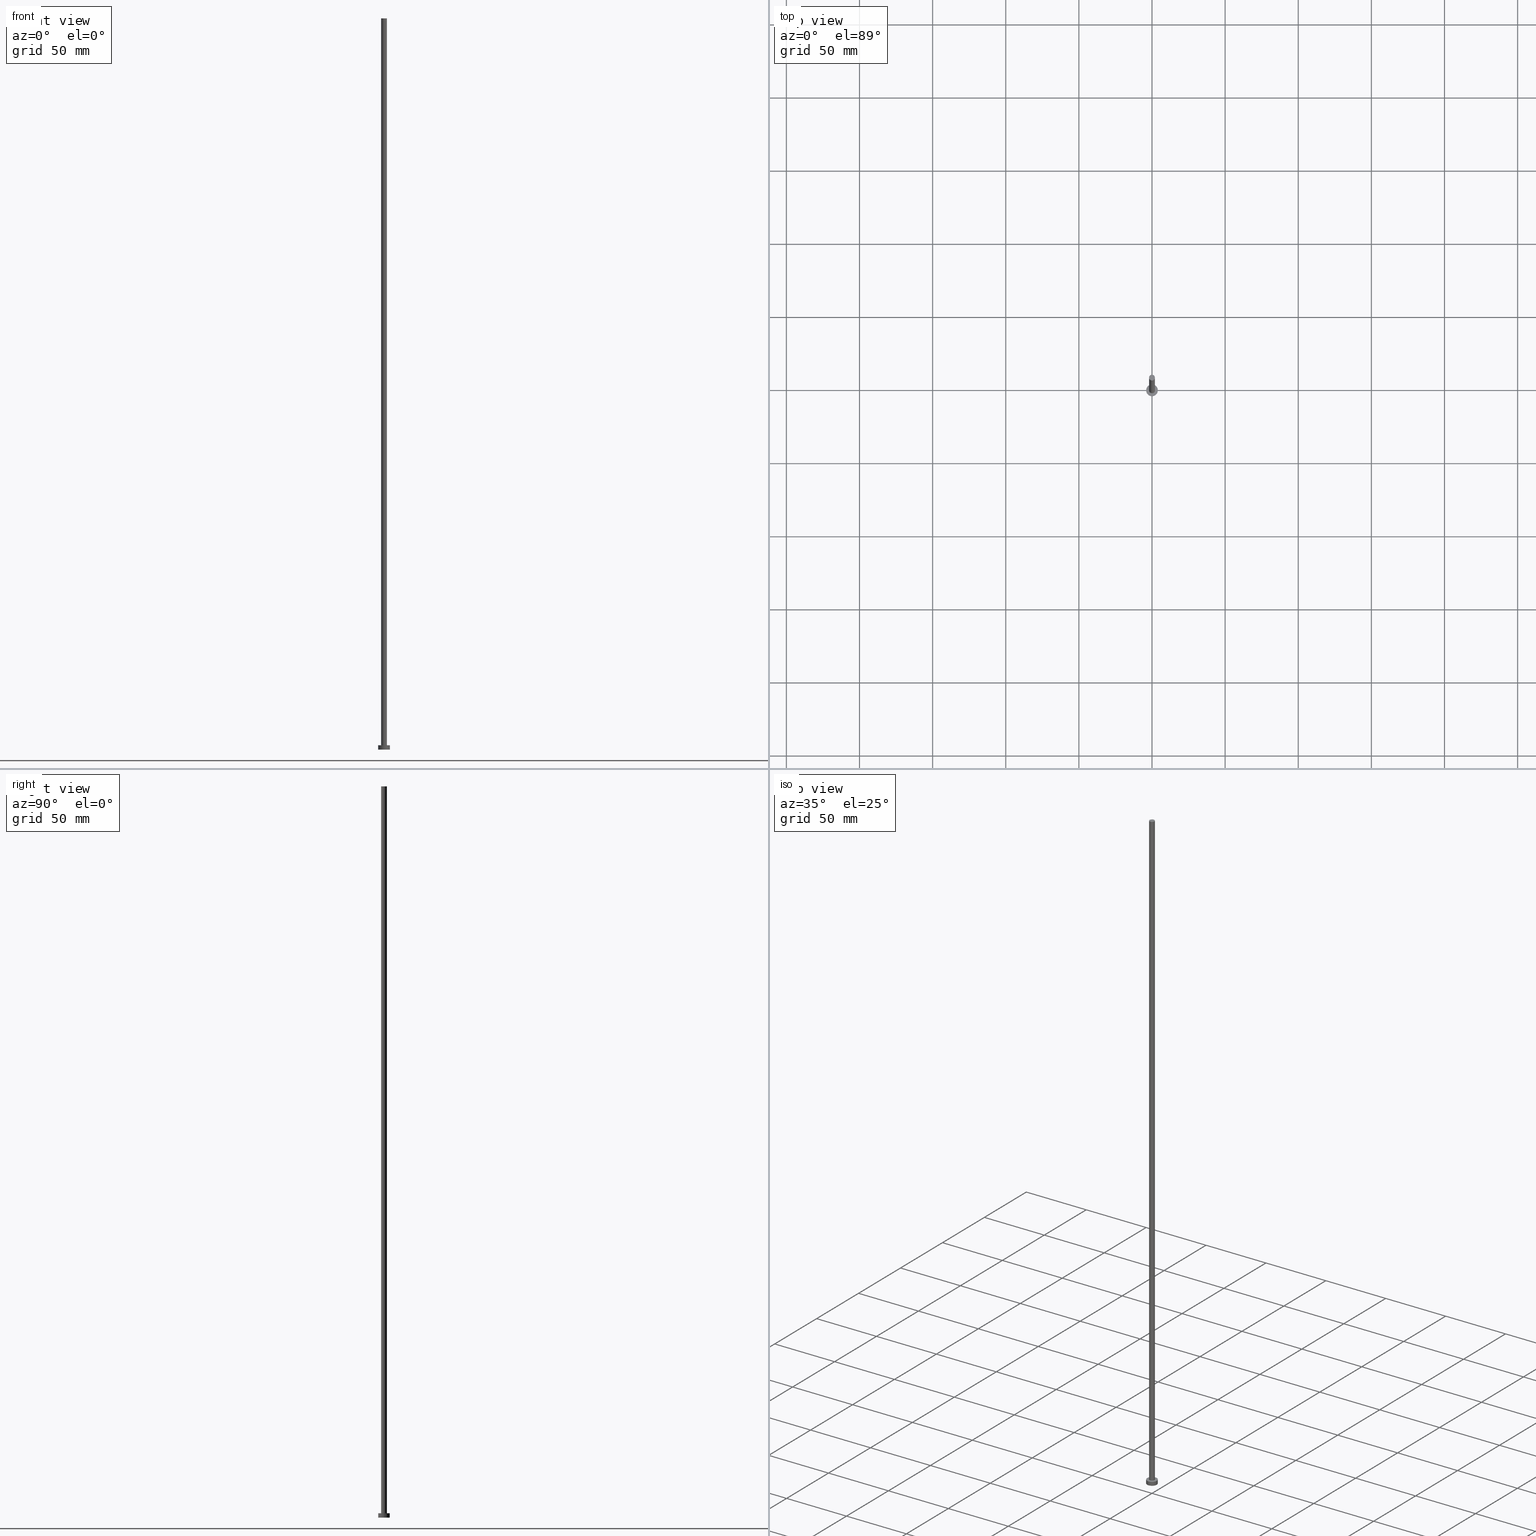
[diagram: canonical four-view strip — front | top / right | iso, engineering-drawing reading convention]
A machine part, canonical four-view strip (front | top / right | iso — engineering-drawing reading convention). The complete STEP part file that produces these views, byte-faithful:
ISO-10303-21;
HEADER;
FILE_DESCRIPTION (( 'STEP AP203' ),
    '1' );
FILE_NAME ('85b9.STEP',
    '2023-02-12T12:01:39',
    ( '' ),
    ( '' ),
    'SwSTEP 2.0',
    'SolidWorks 2019',
    '' );
FILE_SCHEMA (( 'CONFIG_CONTROL_DESIGN' ));
ENDSEC;

DATA;
#1 = CARTESIAN_POINT ( 'NONE',  ( 0.000000000000000000, 0.000000000000000000, 500.0000000000000000 ) ) ;
#2 = AXIS2_PLACEMENT_3D ( 'NONE', #242, #186, #244 ) ;
#3 = DIRECTION ( 'NONE',  ( 0.000000000000000000, 0.000000000000000000, 1.000000000000000000 ) ) ;
#4 = CARTESIAN_POINT ( 'NONE',  ( 0.000000000000000000, 0.000000000000000000, 500.0000000000000000 ) ) ;
#5 = EDGE_LOOP ( 'NONE', ( #83, #234 ) ) ;
#6 = CYLINDRICAL_SURFACE ( 'NONE', #41, 4.000000000000000000 ) ;
#7 = CARTESIAN_POINT ( 'NONE',  ( 0.000000000000000000, 0.000000000000000000, 3.000000000000000000 ) ) ;
#8 = EDGE_CURVE ( 'NONE', #121, #135, #218, .T. ) ;
#9 = APPROVAL_DATE_TIME ( #28, #220 ) ;
#10 = PERSON_AND_ORGANIZATION_ROLE ( 'design_supplier' ) ;
#11 = ADVANCED_FACE ( 'NONE', ( #44 ), #144, .F. ) ;
#12 = APPROVAL_PERSON_ORGANIZATION ( #224, #225, #73 ) ;
#13 = COORDINATED_UNIVERSAL_TIME_OFFSET ( 1, 0, .AHEAD. ) ;
#14 = ORIENTED_EDGE ( 'NONE', *, *, #94, .F. ) ;
#15 = COORDINATED_UNIVERSAL_TIME_OFFSET ( 1, 0, .AHEAD. ) ;
#16 = EDGE_LOOP ( 'NONE', ( #110, #75, #253, #201 ) ) ;
#17 = COORDINATED_UNIVERSAL_TIME_OFFSET ( 1, 0, .AHEAD. ) ;
#18 = VECTOR ( 'NONE', #142, 1000.000000000000000 ) ;
#19 = CC_DESIGN_PERSON_AND_ORGANIZATION_ASSIGNMENT ( #247, #96, ( #118 ) ) ;
#20 = CARTESIAN_POINT ( 'NONE',  ( 0.000000000000000000, 0.000000000000000000, 3.000000000000000000 ) ) ;
#21 = ORIENTED_EDGE ( 'NONE', *, *, #136, .F. ) ;
#22 = CYLINDRICAL_SURFACE ( 'NONE', #115, 2.000000000000000000 ) ;
#23 = AXIS2_PLACEMENT_3D ( 'NONE', #47, #184, #85 ) ;
#24 = CARTESIAN_POINT ( 'NONE',  ( 4.000000000000000000, 4.898587196589412829E-16, 0.000000000000000000 ) ) ;
#25 = APPLICATION_PROTOCOL_DEFINITION ( 'international standard', 'config_control_design', 1994, #251 ) ;
#26 = LOCAL_TIME ( 13, 1, 39.00000000000000000, #13 ) ;
#27 = PRODUCT_RELATED_PRODUCT_CATEGORY ( 'detail', '', ( #228 ) ) ;
#28 = DATE_AND_TIME ( #205, #86 ) ;
#29 = CARTESIAN_POINT ( 'NONE',  ( 0.000000000000000000, 0.000000000000000000, 500.0000000000000000 ) ) ;
#30 = AXIS2_PLACEMENT_3D ( 'NONE', #206, #88, #241 ) ;
#31 = FACE_OUTER_BOUND ( 'NONE', #175, .T. ) ;
#32 = AXIS2_PLACEMENT_3D ( 'NONE', #202, #215, #122 ) ;
#33 = APPROVAL_STATUS ( 'not_yet_approved' ) ;
#34 = CALENDAR_DATE ( 2023, 12, 2 ) ;
#35 = PERSON_AND_ORGANIZATION ( #101, #111 ) ;
#36 = VERTEX_POINT ( 'NONE', #24 ) ;
#37 = APPROVAL_ROLE ( '' ) ;
#38 = AXIS2_PLACEMENT_3D ( 'NONE', #7, #48, #69 ) ;
#39 = CC_DESIGN_SECURITY_CLASSIFICATION ( #118, ( #43 ) ) ;
#40 = DIRECTION ( 'NONE',  ( 0.000000000000000000, 0.000000000000000000, 1.000000000000000000 ) ) ;
#41 = AXIS2_PLACEMENT_3D ( 'NONE', #20, #126, #160 ) ;
#42 = CARTESIAN_POINT ( 'NONE',  ( 0.000000000000000000, 0.000000000000000000, 500.0000000000000000 ) ) ;
#43 = PRODUCT_DEFINITION_FORMATION_WITH_SPECIFIED_SOURCE ( 'LIBOVOLN�', '', #228, .NOT_KNOWN. ) ;
#44 = FACE_OUTER_BOUND ( 'NONE', #124, .T. ) ;
#45 = ADVANCED_FACE ( 'NONE', ( #141 ), #6, .T. ) ;
#46 = CARTESIAN_POINT ( 'NONE',  ( 0.000000000000000000, 0.000000000000000000, 3.000000000000000000 ) ) ;
#47 = CARTESIAN_POINT ( 'NONE',  ( 0.000000000000000000, 0.000000000000000000, 0.000000000000000000 ) ) ;
#48 = DIRECTION ( 'NONE',  ( -0.000000000000000000, -0.000000000000000000, -1.000000000000000000 ) ) ;
#49 = DIRECTION ( 'NONE',  ( 1.000000000000000000, 0.000000000000000000, 0.000000000000000000 ) ) ;
#50 =( NAMED_UNIT ( * ) SI_UNIT ( $, .STERADIAN. ) SOLID_ANGLE_UNIT ( ) );
#51 =( LENGTH_UNIT ( ) NAMED_UNIT ( * ) SI_UNIT ( .MILLI., .METRE. ) );
#52 = ADVANCED_FACE ( 'NONE', ( #177 ), #22, .T. ) ;
#53 = LINE ( 'NONE', #151, #233 ) ;
#54 = AXIS2_PLACEMENT_3D ( 'NONE', #4, #40, #109 ) ;
#55 = EDGE_CURVE ( 'NONE', #174, #36, #82, .T. ) ;
#56 = APPROVAL_DATE_TIME ( #211, #103 ) ;
#57 = EDGE_LOOP ( 'NONE', ( #117, #139, #154, #232 ) ) ;
#58 = DATE_AND_TIME ( #172, #76 ) ;
#59 = ORIENTED_EDGE ( 'NONE', *, *, #199, .F. ) ;
#60 = PERSON_AND_ORGANIZATION ( #101, #111 ) ;
#61 = ADVANCED_FACE ( 'NONE', ( #213, #143 ), #106, .T. ) ;
#62 = ORIENTED_EDGE ( 'NONE', *, *, #208, .F. ) ;
#63 = LINE ( 'NONE', #217, #18 ) ;
#64 = EDGE_LOOP ( 'NONE', ( #98, #127 ) ) ;
#65 = ORIENTED_EDGE ( 'NONE', *, *, #129, .F. ) ;
#66 = DIRECTION ( 'NONE',  ( 0.000000000000000000, 0.000000000000000000, 1.000000000000000000 ) ) ;
#67 = EDGE_CURVE ( 'NONE', #121, #174, #113, .T. ) ;
#68 = MECHANICAL_CONTEXT ( 'NONE', #251, 'mechanical' ) ;
#69 = DIRECTION ( 'NONE',  ( -1.000000000000000000, 0.000000000000000000, 0.000000000000000000 ) ) ;
#70 = FACE_OUTER_BOUND ( 'NONE', #57, .T. ) ;
#71 = VERTEX_POINT ( 'NONE', #200 ) ;
#72 = CIRCLE ( 'NONE', #249, 4.000000000000000000 ) ;
#73 = APPROVAL_ROLE ( '' ) ;
#74 = EDGE_CURVE ( 'NONE', #80, #196, #63, .T. ) ;
#75 = ORIENTED_EDGE ( 'NONE', *, *, #67, .F. ) ;
#76 = LOCAL_TIME ( 13, 1, 39.00000000000000000, #15 ) ;
#77 = CALENDAR_DATE ( 2023, 12, 2 ) ;
#78 = ORIENTED_EDGE ( 'NONE', *, *, #74, .F. ) ;
#79 = DATE_AND_TIME ( #77, #140 ) ;
#80 = VERTEX_POINT ( 'NONE', #108 ) ;
#81 = CC_DESIGN_PERSON_AND_ORGANIZATION_ASSIGNMENT ( #92, #168, ( #153 ) ) ;
#82 = LINE ( 'NONE', #198, #137 ) ;
#83 = ORIENTED_EDGE ( 'NONE', *, *, #208, .T. ) ;
#84 = DIRECTION ( 'NONE',  ( 1.000000000000000000, 0.000000000000000000, -0.000000000000000000 ) ) ;
#85 = DIRECTION ( 'NONE',  ( 1.000000000000000000, 0.000000000000000000, -0.000000000000000000 ) ) ;
#86 = LOCAL_TIME ( 13, 1, 39.00000000000000000, #187 ) ;
#87 = CARTESIAN_POINT ( 'NONE',  ( 0.000000000000000000, 0.000000000000000000, 3.000000000000000000 ) ) ;
#88 = DIRECTION ( 'NONE',  ( 0.000000000000000000, 0.000000000000000000, 1.000000000000000000 ) ) ;
#89 = DESIGN_CONTEXT ( 'detailed design', #105, 'design' ) ;
#90 = CARTESIAN_POINT ( 'NONE',  ( 0.000000000000000000, 0.000000000000000000, 3.000000000000000000 ) ) ;
#91 = AXIS2_PLACEMENT_3D ( 'NONE', #189, #240, #209 ) ;
#92 = PERSON_AND_ORGANIZATION ( #101, #111 ) ;
#93 = DIRECTION ( 'NONE',  ( -0.000000000000000000, -0.000000000000000000, -1.000000000000000000 ) ) ;
#94 = EDGE_CURVE ( 'NONE', #36, #135, #176, .T. ) ;
#95 = CARTESIAN_POINT ( 'NONE',  ( 2.000000000000000000, 2.449293598294705921E-16, 3.000000000000000000 ) ) ;
#96 = PERSON_AND_ORGANIZATION_ROLE ( 'classification_officer' ) ;
#97 = PERSON_AND_ORGANIZATION ( #101, #111 ) ;
#98 = ORIENTED_EDGE ( 'NONE', *, *, #67, .T. ) ;
#99 = UNCERTAINTY_MEASURE_WITH_UNIT (LENGTH_MEASURE( 1.000000000000000082E-05 ), #51, 'distance_accuracy_value', 'NONE');
#100 = CIRCLE ( 'NONE', #91, 2.000000000000000000 ) ;
#101 = PERSON ( 'NEUR�EN�', 'NEUR�EN�', 'NEUR�EN�', ('NEUR�EN�'), ('NEUR�EN�'), ('NEUR�EN�') ) ;
#102 = VERTEX_POINT ( 'NONE', #159 ) ;
#103 = APPROVAL ( #33, 'NEUR�EN�' ) ;
#104 = CARTESIAN_POINT ( 'NONE',  ( -4.000000000000000000, 0.000000000000000000, 3.000000000000000000 ) ) ;
#105 = APPLICATION_CONTEXT ( 'configuration controlled 3d designs of mechanical parts and assemblies' ) ;
#106 = PLANE ( 'NONE',  #146 ) ;
#107 = EDGE_CURVE ( 'NONE', #80, #102, #165, .T. ) ;
#108 = CARTESIAN_POINT ( 'NONE',  ( 2.000000000000000000, 2.449293598294705921E-16, 500.0000000000000000 ) ) ;
#109 = DIRECTION ( 'NONE',  ( 1.000000000000000000, 0.000000000000000000, 0.000000000000000000 ) ) ;
#110 = ORIENTED_EDGE ( 'NONE', *, *, #55, .F. ) ;
#111 = ORGANIZATION ( 'NEUR�EN�', 'NEUR�EN�', '' ) ;
#112 = ADVANCED_FACE ( 'NONE', ( #179 ), #197, .T. ) ;
#113 = CIRCLE ( 'NONE', #32, 4.000000000000000000 ) ;
#114 = CARTESIAN_POINT ( 'NONE',  ( 0.000000000000000000, 0.000000000000000000, 500.0000000000000000 ) ) ;
#115 = AXIS2_PLACEMENT_3D ( 'NONE', #1, #183, #237 ) ;
#116 = PERSON_AND_ORGANIZATION_ROLE ( 'creator' ) ;
#117 = ORIENTED_EDGE ( 'NONE', *, *, #123, .F. ) ;
#118 = SECURITY_CLASSIFICATION ( '', '', #173 ) ;
#119 = ORIENTED_EDGE ( 'NONE', *, *, #254, .T. ) ;
#120 = CC_DESIGN_DATE_AND_TIME_ASSIGNMENT ( #138, #134, ( #118 ) ) ;
#121 = VERTEX_POINT ( 'NONE', #162 ) ;
#122 = DIRECTION ( 'NONE',  ( 1.000000000000000000, 0.000000000000000000, 0.000000000000000000 ) ) ;
#123 = EDGE_CURVE ( 'NONE', #174, #121, #72, .T. ) ;
#124 = EDGE_LOOP ( 'NONE', ( #21, #14 ) ) ;
#125 = AXIS2_PLACEMENT_3D ( 'NONE', #90, #149, #204 ) ;
#126 = DIRECTION ( 'NONE',  ( -0.000000000000000000, -0.000000000000000000, -1.000000000000000000 ) ) ;
#127 = ORIENTED_EDGE ( 'NONE', *, *, #123, .T. ) ;
#128 = EDGE_LOOP ( 'NONE', ( #65, #194 ) ) ;
#129 = EDGE_CURVE ( 'NONE', #71, #196, #100, .T. ) ;
#130 = APPROVAL_STATUS ( 'not_yet_approved' ) ;
#131 = AXIS2_PLACEMENT_3D ( 'NONE', #238, #66, #214 ) ;
#132 = DIRECTION ( 'NONE',  ( 0.000000000000000000, 0.000000000000000000, 1.000000000000000000 ) ) ;
#133 = CLOSED_SHELL ( 'NONE', ( #246, #239, #45, #61, #11, #52, #112 ) ) ;
#134 = DATE_TIME_ROLE ( 'classification_date' ) ;
#135 = VERTEX_POINT ( 'NONE', #170 ) ;
#136 = EDGE_CURVE ( 'NONE', #135, #36, #203, .T. ) ;
#137 = VECTOR ( 'NONE', #235, 1000.000000000000000 ) ;
#138 = DATE_AND_TIME ( #34, #180 ) ;
#139 = ORIENTED_EDGE ( 'NONE', *, *, #55, .T. ) ;
#140 = LOCAL_TIME ( 13, 1, 39.00000000000000000, #193 ) ;
#141 = FACE_OUTER_BOUND ( 'NONE', #16, .T. ) ;
#142 = DIRECTION ( 'NONE',  ( -0.000000000000000000, -0.000000000000000000, -1.000000000000000000 ) ) ;
#143 = FACE_OUTER_BOUND ( 'NONE', #64, .T. ) ;
#144 = PLANE ( 'NONE',  #23 ) ;
#145 = DIRECTION ( 'NONE',  ( -0.000000000000000000, -0.000000000000000000, -1.000000000000000000 ) ) ;
#146 = AXIS2_PLACEMENT_3D ( 'NONE', #87, #164, #161 ) ;
#147 = DIRECTION ( 'NONE',  ( -0.000000000000000000, -0.000000000000000000, -1.000000000000000000 ) ) ;
#148 = PERSON_AND_ORGANIZATION ( #101, #111 ) ;
#149 = DIRECTION ( 'NONE',  ( 0.000000000000000000, 0.000000000000000000, 1.000000000000000000 ) ) ;
#150 = PERSON_AND_ORGANIZATION_ROLE ( 'design_owner' ) ;
#151 = CARTESIAN_POINT ( 'NONE',  ( -2.000000000000000000, 0.000000000000000000, 500.0000000000000000 ) ) ;
#152 = CC_DESIGN_APPROVAL ( #103, ( #43 ) ) ;
#153 = PRODUCT_DEFINITION ( 'NEZN�M�', '', #43, #89 ) ;
#154 = ORIENTED_EDGE ( 'NONE', *, *, #94, .T. ) ;
#155 = APPROVAL_DATE_TIME ( #58, #225 ) ;
#156 = ORIENTED_EDGE ( 'NONE', *, *, #107, .F. ) ;
#157 = APPROVAL_PERSON_ORGANIZATION ( #35, #103, #37 ) ;
#158 = CALENDAR_DATE ( 2023, 12, 2 ) ;
#159 = CARTESIAN_POINT ( 'NONE',  ( -2.000000000000000000, 0.000000000000000000, 500.0000000000000000 ) ) ;
#160 = DIRECTION ( 'NONE',  ( -1.000000000000000000, 0.000000000000000000, 0.000000000000000000 ) ) ;
#161 = DIRECTION ( 'NONE',  ( 1.000000000000000000, 0.000000000000000000, -0.000000000000000000 ) ) ;
#162 = CARTESIAN_POINT ( 'NONE',  ( -4.000000000000000000, 0.000000000000000000, 3.000000000000000000 ) ) ;
#163 = CC_DESIGN_PERSON_AND_ORGANIZATION_ASSIGNMENT ( #60, #10, ( #43 ) ) ;
#164 = DIRECTION ( 'NONE',  ( 0.000000000000000000, 0.000000000000000000, 1.000000000000000000 ) ) ;
#165 = CIRCLE ( 'NONE', #54, 2.000000000000000000 ) ;
#166 = CARTESIAN_POINT ( 'NONE',  ( 4.000000000000000000, 4.898587196589412829E-16, 3.000000000000000000 ) ) ;
#167 = CC_DESIGN_APPROVAL ( #225, ( #118 ) ) ;
#168 = PERSON_AND_ORGANIZATION_ROLE ( 'creator' ) ;
#169 = DIRECTION ( 'NONE',  ( -1.000000000000000000, 0.000000000000000000, 0.000000000000000000 ) ) ;
#170 = CARTESIAN_POINT ( 'NONE',  ( -4.000000000000000000, 0.000000000000000000, 0.000000000000000000 ) ) ;
#171 = CC_DESIGN_PERSON_AND_ORGANIZATION_ASSIGNMENT ( #148, #150, ( #228 ) ) ;
#172 = CALENDAR_DATE ( 2023, 12, 2 ) ;
#173 = SECURITY_CLASSIFICATION_LEVEL ( 'unclassified' ) ;
#174 = VERTEX_POINT ( 'NONE', #166 ) ;
#175 = EDGE_LOOP ( 'NONE', ( #156, #229, #119, #59 ) ) ;
#176 = CIRCLE ( 'NONE', #131, 4.000000000000000000 ) ;
#177 = FACE_OUTER_BOUND ( 'NONE', #250, .T. ) ;
#178 = CC_DESIGN_PERSON_AND_ORGANIZATION_ASSIGNMENT ( #97, #116, ( #43 ) ) ;
#179 = FACE_OUTER_BOUND ( 'NONE', #5, .T. ) ;
#180 = LOCAL_TIME ( 13, 1, 39.00000000000000000, #17 ) ;
#181 = MANIFOLD_SOLID_BREP ( 'P�idat vysunut�m3', #133 ) ;
#182 = DIRECTION ( 'NONE',  ( 0.000000000000000000, 0.000000000000000000, 1.000000000000000000 ) ) ;
#183 = DIRECTION ( 'NONE',  ( -0.000000000000000000, -0.000000000000000000, -1.000000000000000000 ) ) ;
#184 = DIRECTION ( 'NONE',  ( 0.000000000000000000, 0.000000000000000000, 1.000000000000000000 ) ) ;
#185 = CIRCLE ( 'NONE', #227, 2.000000000000000000 ) ;
#186 = DIRECTION ( 'NONE',  ( 0.000000000000000000, 0.000000000000000000, 1.000000000000000000 ) ) ;
#187 = COORDINATED_UNIVERSAL_TIME_OFFSET ( 1, 0, .AHEAD. ) ;
#188 = AXIS2_PLACEMENT_3D ( 'NONE', #42, #3, #84 ) ;
#189 = CARTESIAN_POINT ( 'NONE',  ( 0.000000000000000000, 0.000000000000000000, 3.000000000000000000 ) ) ;
#190 = CIRCLE ( 'NONE', #125, 2.000000000000000000 ) ;
#191 =( NAMED_UNIT ( * ) PLANE_ANGLE_UNIT ( ) SI_UNIT ( $, .RADIAN. ) );
#192 = VECTOR ( 'NONE', #145, 1000.000000000000000 ) ;
#193 = COORDINATED_UNIVERSAL_TIME_OFFSET ( 1, 0, .AHEAD. ) ;
#194 = ORIENTED_EDGE ( 'NONE', *, *, #254, .F. ) ;
#195 = PRODUCT_DEFINITION_SHAPE ( 'NONE', 'NONE',  #153 ) ;
#196 = VERTEX_POINT ( 'NONE', #95 ) ;
#197 = PLANE ( 'NONE',  #188 ) ;
#198 = CARTESIAN_POINT ( 'NONE',  ( 4.000000000000000000, 4.898587196589412829E-16, 3.000000000000000000 ) ) ;
#199 = EDGE_CURVE ( 'NONE', #102, #71, #53, .T. ) ;
#200 = CARTESIAN_POINT ( 'NONE',  ( -2.000000000000000000, 0.000000000000000000, 3.000000000000000000 ) ) ;
#201 = ORIENTED_EDGE ( 'NONE', *, *, #136, .T. ) ;
#202 = CARTESIAN_POINT ( 'NONE',  ( 0.000000000000000000, 0.000000000000000000, 3.000000000000000000 ) ) ;
#203 = CIRCLE ( 'NONE', #2, 4.000000000000000000 ) ;
#204 = DIRECTION ( 'NONE',  ( 1.000000000000000000, 0.000000000000000000, 0.000000000000000000 ) ) ;
#205 = CALENDAR_DATE ( 2023, 12, 2 ) ;
#206 = CARTESIAN_POINT ( 'NONE',  ( 0.000000000000000000, 0.000000000000000000, 0.000000000000000000 ) ) ;
#207 = APPROVAL_PERSON_ORGANIZATION ( #219, #220, #222 ) ;
#208 = EDGE_CURVE ( 'NONE', #102, #80, #185, .T. ) ;
#209 = DIRECTION ( 'NONE',  ( 1.000000000000000000, 0.000000000000000000, 0.000000000000000000 ) ) ;
#210 = DATE_TIME_ROLE ( 'creation_date' ) ;
#211 = DATE_AND_TIME ( #158, #26 ) ;
#212 = CC_DESIGN_DATE_AND_TIME_ASSIGNMENT ( #79, #210, ( #153 ) ) ;
#213 = FACE_BOUND ( 'NONE', #128, .T. ) ;
#214 = DIRECTION ( 'NONE',  ( 1.000000000000000000, 0.000000000000000000, 0.000000000000000000 ) ) ;
#215 = DIRECTION ( 'NONE',  ( 0.000000000000000000, 0.000000000000000000, 1.000000000000000000 ) ) ;
#216 =( GEOMETRIC_REPRESENTATION_CONTEXT ( 3 ) GLOBAL_UNCERTAINTY_ASSIGNED_CONTEXT ( ( #99 ) ) GLOBAL_UNIT_ASSIGNED_CONTEXT ( ( #51, #191, #50 ) ) REPRESENTATION_CONTEXT ( 'NONE', 'WORKASPACE' ) );
#217 = CARTESIAN_POINT ( 'NONE',  ( 2.000000000000000000, 2.449293598294705921E-16, 500.0000000000000000 ) ) ;
#218 = LINE ( 'NONE', #104, #192 ) ;
#219 = PERSON_AND_ORGANIZATION ( #101, #111 ) ;
#220 = APPROVAL ( #130, 'NEUR�EN�' ) ;
#221 = APPLICATION_PROTOCOL_DEFINITION ( 'international standard', 'config_control_design', 1994, #105 ) ;
#222 = APPROVAL_ROLE ( '' ) ;
#223 = CYLINDRICAL_SURFACE ( 'NONE', #38, 4.000000000000000000 ) ;
#224 = PERSON_AND_ORGANIZATION ( #101, #111 ) ;
#225 = APPROVAL ( #231, 'NEUR�EN�' ) ;
#226 = SHAPE_DEFINITION_REPRESENTATION ( #195, #255 ) ;
#227 = AXIS2_PLACEMENT_3D ( 'NONE', #114, #132, #49 ) ;
#228 = PRODUCT ( '85b9', '85b9', '', ( #68 ) ) ;
#229 = ORIENTED_EDGE ( 'NONE', *, *, #74, .T. ) ;
#230 = ORIENTED_EDGE ( 'NONE', *, *, #199, .T. ) ;
#231 = APPROVAL_STATUS ( 'not_yet_approved' ) ;
#232 = ORIENTED_EDGE ( 'NONE', *, *, #8, .F. ) ;
#233 = VECTOR ( 'NONE', #93, 1000.000000000000000 ) ;
#234 = ORIENTED_EDGE ( 'NONE', *, *, #107, .T. ) ;
#235 = DIRECTION ( 'NONE',  ( -0.000000000000000000, -0.000000000000000000, -1.000000000000000000 ) ) ;
#236 = DIRECTION ( 'NONE',  ( 1.000000000000000000, 0.000000000000000000, 0.000000000000000000 ) ) ;
#237 = DIRECTION ( 'NONE',  ( -1.000000000000000000, 0.000000000000000000, 0.000000000000000000 ) ) ;
#238 = CARTESIAN_POINT ( 'NONE',  ( 0.000000000000000000, 0.000000000000000000, 0.000000000000000000 ) ) ;
#239 = ADVANCED_FACE ( 'NONE', ( #70 ), #223, .T. ) ;
#240 = DIRECTION ( 'NONE',  ( 0.000000000000000000, 0.000000000000000000, 1.000000000000000000 ) ) ;
#241 = DIRECTION ( 'NONE',  ( 1.000000000000000000, 0.000000000000000000, 0.000000000000000000 ) ) ;
#242 = CARTESIAN_POINT ( 'NONE',  ( 0.000000000000000000, 0.000000000000000000, 0.000000000000000000 ) ) ;
#243 = CYLINDRICAL_SURFACE ( 'NONE', #252, 2.000000000000000000 ) ;
#244 = DIRECTION ( 'NONE',  ( 1.000000000000000000, 0.000000000000000000, 0.000000000000000000 ) ) ;
#245 = CC_DESIGN_APPROVAL ( #220, ( #153 ) ) ;
#246 = ADVANCED_FACE ( 'NONE', ( #31 ), #243, .T. ) ;
#247 = PERSON_AND_ORGANIZATION ( #101, #111 ) ;
#248 = ORIENTED_EDGE ( 'NONE', *, *, #129, .T. ) ;
#249 = AXIS2_PLACEMENT_3D ( 'NONE', #46, #182, #236 ) ;
#250 = EDGE_LOOP ( 'NONE', ( #78, #62, #230, #248 ) ) ;
#251 = APPLICATION_CONTEXT ( 'configuration controlled 3d designs of mechanical parts and assemblies' ) ;
#252 = AXIS2_PLACEMENT_3D ( 'NONE', #29, #147, #169 ) ;
#253 = ORIENTED_EDGE ( 'NONE', *, *, #8, .T. ) ;
#254 = EDGE_CURVE ( 'NONE', #196, #71, #190, .T. ) ;
#255 = ADVANCED_BREP_SHAPE_REPRESENTATION ( '85b9', ( #181, #30 ), #216 ) ;
ENDSEC;
END-ISO-10303-21;
